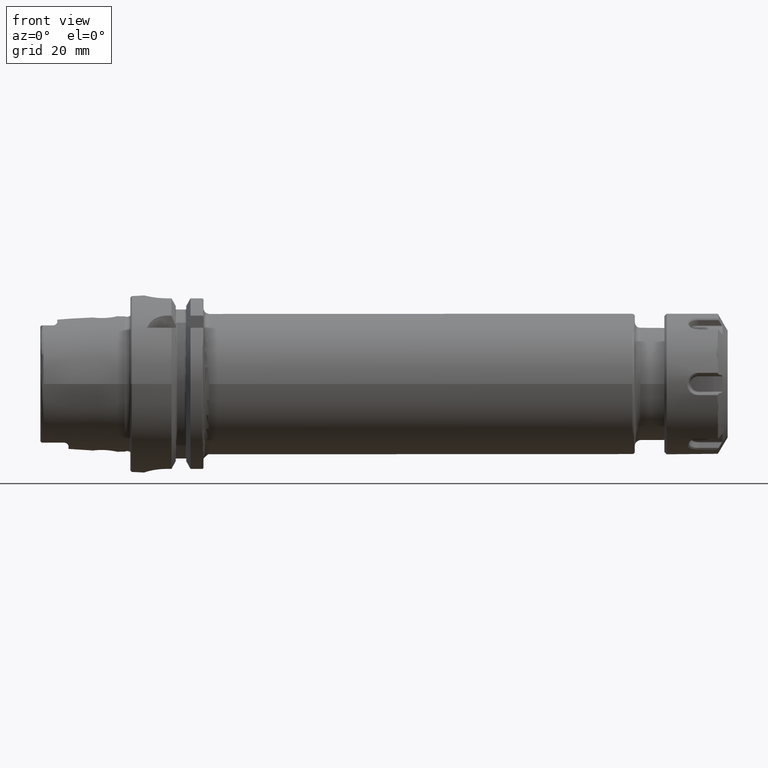
[diagram: clean part render]
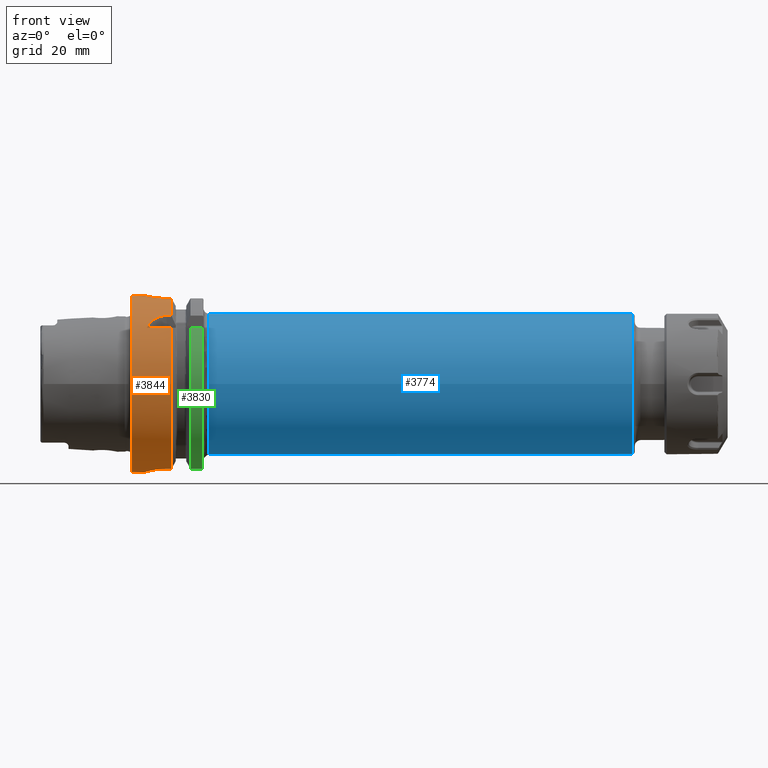
[diagram: same view with three faces highlighted in distinct colors, each labeled with its STEP entity id]
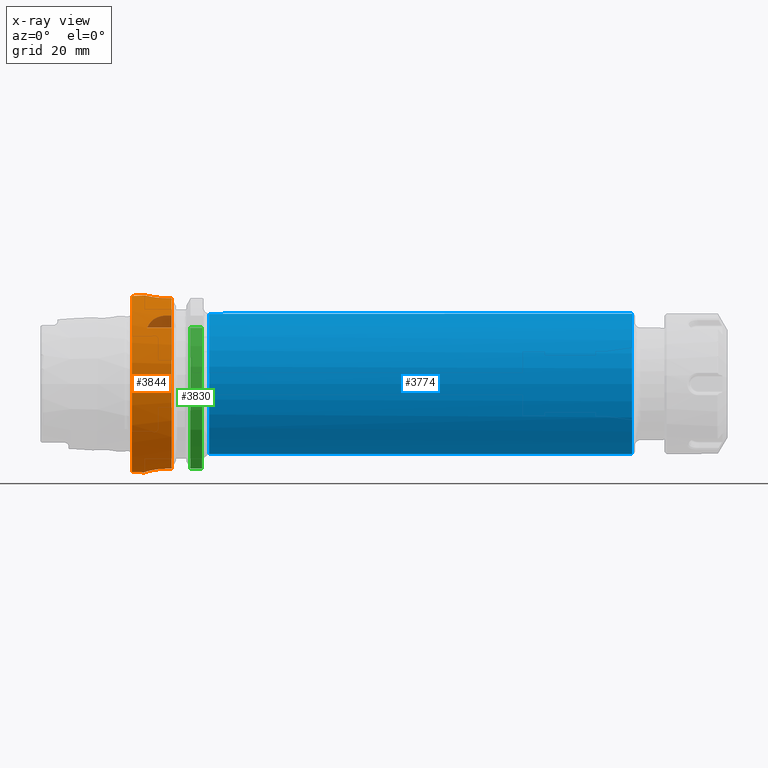
[diagram: x-ray of the same camera — body ghosted, the three highlighted faces saturated]
A machine part, front view with three faces highlighted in distinct colors.
The next image is the same camera in x-ray (body ghosted, the three faces saturated) — at least one of them is partly hidden behind the body in this view.
Their STEP definitions:

[orange] entity #3844 — the highlighted cylindrical surface (bore or boss wall) has radius 31.5 mm, axis along (1, 0, 0).
#497=B_SPLINE_CURVE_WITH_KNOTS('',3,(#6461,#6462,#6463,#6464,#6465,#6466,
#6467,#6468,#6469,#6470,#6471,#6472,#6473,#6474,#6475,#6476,#6477,#6478,
#6479,#6480,#6481,#6482,#6483,#6484,#6485,#6486),.UNSPECIFIED.,.F.,.F.,
(4,2,2,2,2,2,2,2,2,2,2,2,4),(0.,0.188688694287612,0.377377388575223,0.56606194688798,
0.754746505200737,0.943431063513494,1.13211562182625,1.32080431611386,1.50949301040147,
1.69818170468909,1.8868703989767,2.07555495728945,2.26423951560221),
 .UNSPECIFIED.);
#498=B_SPLINE_CURVE_WITH_KNOTS('',3,(#6487,#6488,#6489,#6490,#6491,#6492,
#6493,#6494,#6495,#6496),.UNSPECIFIED.,.F.,.F.,(4,2,2,2,4),(2.26423951560221,
2.45292407391497,2.64160863222773,2.83029732651534,3.01898602080295),
 .UNSPECIFIED.);
#501=B_SPLINE_CURVE_WITH_KNOTS('',3,(#6553,#6554,#6555,#6556,#6557,#6558,
#6559,#6560,#6561,#6562,#6563,#6564),.UNSPECIFIED.,.F.,.F.,(4,2,2,2,2,4),
(1.1085154204615,1.31979218709236,1.52798350480179,1.73617482251122,1.90421770126337,
2.07226058001552),.UNSPECIFIED.);
#511=B_SPLINE_CURVE_WITH_KNOTS('',3,(#6737,#6738,#6739,#6740,#6741,#6742,
#6743,#6744,#6745,#6746),.UNSPECIFIED.,.F.,.F.,(4,2,2,2,4),(1.20927420824097,
1.5131742975437,1.81707438684643,2.12000449915965,2.42293461147287),
 .UNSPECIFIED.);
#514=B_SPLINE_CURVE_WITH_KNOTS('',3,(#6772,#6773,#6774,#6775,#6776,#6777,
#6778,#6779,#6780,#6781),.UNSPECIFIED.,.F.,.F.,(4,2,2,2,4),(0.,0.30293011231322,
0.605860224626439,0.90976031392917,1.2136604032319),.UNSPECIFIED.);
#524=B_SPLINE_CURVE_WITH_KNOTS('',3,(#6933,#6934,#6935,#6936,#6937,#6938,
#6939,#6940,#6941,#6942,#6943,#6944,#6945,#6946,#6947,#6948,#6949,#6950),
 .UNSPECIFIED.,.F.,.F.,(4,2,2,2,2,2,2,2,4),(0.,0.302805879979318,0.605611759958635,
0.908372461246501,1.21113316253437,1.51389386382223,1.8166545651101,2.11946044508942,
2.42226632506874),.UNSPECIFIED.);
#659=FACE_BOUND('',#1043,.T.);
#830=FACE_OUTER_BOUND('',#1042,.T.);
#1042=EDGE_LOOP('',(#3090,#3091,#3092,#3093,#3094,#3095,#3096,#3097,#3098,
#3099,#3100,#3101,#3102,#3103,#3104,#3105,#3106,#3107));
#1043=EDGE_LOOP('',(#3108,#3109));
#1226=LINE('',#6528,#1419);
#1231=LINE('',#6573,#1424);
#1251=LINE('',#6754,#1444);
#1252=LINE('',#6758,#1445);
#1266=LINE('',#6927,#1459);
#1269=LINE('',#6957,#1462);
#1271=LINE('',#6963,#1464);
#1419=VECTOR('',#4800,10.);
#1424=VECTOR('',#4811,10.);
#1444=VECTOR('',#4877,10.);
#1445=VECTOR('',#4880,10.);
#1459=VECTOR('',#4964,10.);
#1462=VECTOR('',#4975,10.);
#1464=VECTOR('',#4983,31.5);
#1623=CIRCLE('',#4206,31.5);
#1624=CIRCLE('',#4207,31.5);
#1632=CIRCLE('',#4227,31.5);
#1633=CIRCLE('',#4229,31.5);
#1648=CIRCLE('',#4266,31.5);
#1649=CIRCLE('',#4267,31.5);
#1879=VERTEX_POINT('',#6458);
#1880=VERTEX_POINT('',#6460);
#1888=VERTEX_POINT('',#6525);
#1889=VERTEX_POINT('',#6527);
#1893=VERTEX_POINT('',#6552);
#1895=VERTEX_POINT('',#6569);
#1900=VERTEX_POINT('',#6585);
#1901=VERTEX_POINT('',#6587);
#1928=VERTEX_POINT('',#6735);
#1929=VERTEX_POINT('',#6736);
#1930=VERTEX_POINT('',#6756);
#1931=VERTEX_POINT('',#6757);
#1934=VERTEX_POINT('',#6771);
#1935=VERTEX_POINT('',#6786);
#1953=VERTEX_POINT('',#6924);
#1954=VERTEX_POINT('',#6926);
#1955=VERTEX_POINT('',#6932);
#1957=VERTEX_POINT('',#6962);
#2254=EDGE_CURVE('',#1880,#1879,#497,.T.);
#2255=EDGE_CURVE('',#1879,#1880,#498,.T.);
#2264=EDGE_CURVE('',#1889,#1888,#1226,.T.);
#2270=EDGE_CURVE('',#1888,#1893,#501,.T.);
#2274=EDGE_CURVE('',#1893,#1895,#1231,.T.);
#2280=EDGE_CURVE('',#1889,#1900,#1623,.T.);
#2281=EDGE_CURVE('',#1900,#1901,#1624,.T.);
#2317=EDGE_CURVE('',#1928,#1929,#511,.T.);
#2321=EDGE_CURVE('',#1929,#1901,#1251,.T.);
#2322=EDGE_CURVE('',#1930,#1931,#1252,.T.);
#2327=EDGE_CURVE('',#1931,#1934,#514,.T.);
#2329=EDGE_CURVE('',#1934,#1928,#1632,.T.);
#2330=EDGE_CURVE('',#1930,#1935,#1633,.T.);
#2365=EDGE_CURVE('',#1954,#1953,#1266,.T.);
#2367=EDGE_CURVE('',#1953,#1955,#524,.T.);
#2371=EDGE_CURVE('',#1955,#1935,#1269,.T.);
#2373=EDGE_CURVE('',#1954,#1895,#1648,.T.);
#2374=EDGE_CURVE('',#1900,#1957,#1271,.T.);
#2375=EDGE_CURVE('',#1957,#1957,#1649,.T.);
#3090=ORIENTED_EDGE('',*,*,#2274,.T.);
#3091=ORIENTED_EDGE('',*,*,#2373,.F.);
#3092=ORIENTED_EDGE('',*,*,#2365,.T.);
#3093=ORIENTED_EDGE('',*,*,#2367,.T.);
#3094=ORIENTED_EDGE('',*,*,#2371,.T.);
#3095=ORIENTED_EDGE('',*,*,#2330,.F.);
#3096=ORIENTED_EDGE('',*,*,#2322,.T.);
#3097=ORIENTED_EDGE('',*,*,#2327,.T.);
#3098=ORIENTED_EDGE('',*,*,#2329,.T.);
#3099=ORIENTED_EDGE('',*,*,#2317,.T.);
#3100=ORIENTED_EDGE('',*,*,#2321,.T.);
#3101=ORIENTED_EDGE('',*,*,#2281,.F.);
#3102=ORIENTED_EDGE('',*,*,#2374,.T.);
#3103=ORIENTED_EDGE('',*,*,#2375,.T.);
#3104=ORIENTED_EDGE('',*,*,#2374,.F.);
#3105=ORIENTED_EDGE('',*,*,#2280,.F.);
#3106=ORIENTED_EDGE('',*,*,#2264,.T.);
#3107=ORIENTED_EDGE('',*,*,#2270,.T.);
#3108=ORIENTED_EDGE('',*,*,#2254,.T.);
#3109=ORIENTED_EDGE('',*,*,#2255,.T.);
#3733=CYLINDRICAL_SURFACE('',#4265,31.5);
#3844=ADVANCED_FACE('',(#830,#659),#3733,.T.);
#4206=AXIS2_PLACEMENT_3D('',#6586,#4824,#4825);
#4207=AXIS2_PLACEMENT_3D('',#6588,#4826,#4827);
#4227=AXIS2_PLACEMENT_3D('',#6784,#4888,#4889);
#4229=AXIS2_PLACEMENT_3D('',#6787,#4892,#4893);
#4265=AXIS2_PLACEMENT_3D('',#6960,#4979,#4980);
#4266=AXIS2_PLACEMENT_3D('',#6961,#4981,#4982);
#4267=AXIS2_PLACEMENT_3D('',#6964,#4984,#4985);
#4800=DIRECTION('',(-1.,0.,0.));
#4811=DIRECTION('',(1.,0.,0.));
#4824=DIRECTION('center_axis',(1.,0.,0.));
#4825=DIRECTION('ref_axis',(0.,0.,-1.));
#4826=DIRECTION('center_axis',(1.,0.,0.));
#4827=DIRECTION('ref_axis',(0.,0.,-1.));
#4877=DIRECTION('',(1.,0.,0.));
#4880=DIRECTION('',(-1.,0.,0.));
#4888=DIRECTION('center_axis',(-1.,0.,0.));
#4889=DIRECTION('ref_axis',(0.,1.,0.));
#4892=DIRECTION('center_axis',(1.,0.,0.));
#4893=DIRECTION('ref_axis',(0.,0.,-1.));
#4964=DIRECTION('',(-1.,0.,0.));
#4975=DIRECTION('',(1.,0.,0.));
#4979=DIRECTION('center_axis',(1.,0.,0.));
#4980=DIRECTION('ref_axis',(0.,1.,0.));
#4981=DIRECTION('center_axis',(1.,0.,0.));
#4982=DIRECTION('ref_axis',(0.,0.,-1.));
#4983=DIRECTION('',(-1.,0.,0.));
#4984=DIRECTION('center_axis',(1.,0.,0.));
#4985=DIRECTION('ref_axis',(0.,0.,-1.));
#6458=CARTESIAN_POINT('',(12.,31.5,-6.12323399573677E-16));
#6460=CARTESIAN_POINT('',(7.,31.100643080168,5.));
#6461=CARTESIAN_POINT('Ctrl Pts',(7.,31.100643080168,5.));
#6462=CARTESIAN_POINT('Ctrl Pts',(6.37103768570796,31.100643080168,5.));
#6463=CARTESIAN_POINT('Ctrl Pts',(5.70089281579202,31.1216953112949,4.87408354368814));
#6464=CARTESIAN_POINT('Ctrl Pts',(4.46931934300962,31.1973810209855,4.36348784122736));
#6465=CARTESIAN_POINT('Ctrl Pts',(3.90779781350673,31.2508828501623,3.97886562537221));
#6466=CARTESIAN_POINT('Ctrl Pts',(3.021144092268,31.3510329557602,3.09221190413348));
#6467=CARTESIAN_POINT('Ctrl Pts',(2.63651425348544,31.4042391414288,2.5306861925578));
#6468=CARTESIAN_POINT('Ctrl Pts',(2.12591301120586,31.4792463697936,1.29909839144709));
#6469=CARTESIAN_POINT('Ctrl Pts',(2.,31.5,0.62894852770919));
#6470=CARTESIAN_POINT('Ctrl Pts',(2.,31.5,-0.62894852770919));
#6471=CARTESIAN_POINT('Ctrl Pts',(2.12591301120586,31.4792463697936,-1.29909839144709));
#6472=CARTESIAN_POINT('Ctrl Pts',(2.63651425348544,31.4042391414288,-2.5306861925578));
#6473=CARTESIAN_POINT('Ctrl Pts',(3.021144092268,31.3510329557602,-3.09221190413348));
#6474=CARTESIAN_POINT('Ctrl Pts',(3.90779781350673,31.2508828501623,-3.97886562537221));
#6475=CARTESIAN_POINT('Ctrl Pts',(4.46931934300962,31.1973810209855,-4.36348784122736));
#6476=CARTESIAN_POINT('Ctrl Pts',(5.70089281579202,31.1216953112949,-4.87408354368814));
#6477=CARTESIAN_POINT('Ctrl Pts',(6.37103768570796,31.100643080168,-5.));
#6478=CARTESIAN_POINT('Ctrl Pts',(7.62896231429204,31.100643080168,-5.));
#6479=CARTESIAN_POINT('Ctrl Pts',(8.29910718420798,31.1216953112949,-4.87408354368814));
#6480=CARTESIAN_POINT('Ctrl Pts',(9.53068065699038,31.1973810209855,-4.36348784122736));
#6481=CARTESIAN_POINT('Ctrl Pts',(10.0922021864933,31.2508828501623,-3.97886562537221));
#6482=CARTESIAN_POINT('Ctrl Pts',(10.978855907732,31.3510329557602,-3.09221190413348));
#6483=CARTESIAN_POINT('Ctrl Pts',(11.3634857465146,31.4042391414288,-2.53068619255779));
#6484=CARTESIAN_POINT('Ctrl Pts',(11.8740869887941,31.4792463697936,-1.29909839144708));
#6485=CARTESIAN_POINT('Ctrl Pts',(12.,31.5,-0.62894852770919));
#6486=CARTESIAN_POINT('Ctrl Pts',(12.,31.5,-4.16333634234434E-16));
#6487=CARTESIAN_POINT('Ctrl Pts',(12.,31.5,-1.11022302462516E-15));
#6488=CARTESIAN_POINT('Ctrl Pts',(12.,31.5,0.628948527709188));
#6489=CARTESIAN_POINT('Ctrl Pts',(11.8740869887941,31.4792463697936,1.29909839144708));
#6490=CARTESIAN_POINT('Ctrl Pts',(11.3634857465146,31.4042391414288,2.53068619255779));
#6491=CARTESIAN_POINT('Ctrl Pts',(10.978855907732,31.3510329557602,3.09221190413348));
#6492=CARTESIAN_POINT('Ctrl Pts',(10.0922021864933,31.2508828501623,3.97886562537221));
#6493=CARTESIAN_POINT('Ctrl Pts',(9.53068065699038,31.1973810209855,4.36348784122736));
#6494=CARTESIAN_POINT('Ctrl Pts',(8.29910718420798,31.1216953112949,4.87408354368814));
#6495=CARTESIAN_POINT('Ctrl Pts',(7.62896231429204,31.100643080168,5.));
#6496=CARTESIAN_POINT('Ctrl Pts',(7.,31.100643080168,5.));
#6525=CARTESIAN_POINT('',(5.88828609634419,-24.3361870472759,20.));
#6527=CARTESIAN_POINT('',(14.6225009252407,-24.3361870472759,20.));
#6528=CARTESIAN_POINT('',(7.56125046262034,-24.3361870472759,20.));
#6552=CARTESIAN_POINT('',(13.,-20.,24.3361870472759));
#6553=CARTESIAN_POINT('Ctrl Pts',(5.88828609634419,-24.3361870472759,20.));
#6554=CARTESIAN_POINT('Ctrl Pts',(6.11069532820048,-23.9044753723342,20.5253108035937));
#6555=CARTESIAN_POINT('Ctrl Pts',(6.38325999044306,-23.4713523250807,21.0173865932788));
#6556=CARTESIAN_POINT('Ctrl Pts',(7.044898076458,-22.6317364276543,21.9186738868096));
#6557=CARTESIAN_POINT('Ctrl Pts',(7.46714468561685,-22.1861072682036,22.3682920878559));
#6558=CARTESIAN_POINT('Ctrl Pts',(8.46725531403812,-21.3767026700071,23.143042657319));
#6559=CARTESIAN_POINT('Ctrl Pts',(9.04646427720221,-21.0147449478223,23.4683362269255));
#6560=CARTESIAN_POINT('Ctrl Pts',(10.1145001432702,-20.5200081116516,23.9011603796022));
#6561=CARTESIAN_POINT('Ctrl Pts',(10.670823971716,-20.3234249831704,24.0673462447194));
#6562=CARTESIAN_POINT('Ctrl Pts',(11.8334528721306,-20.063121855676,24.2847667849476));
#6563=CARTESIAN_POINT('Ctrl Pts',(12.4398570708262,-20.,24.3361870472759));
#6564=CARTESIAN_POINT('Ctrl Pts',(13.,-20.,24.3361870472759));
#6569=CARTESIAN_POINT('',(14.6225009252407,-20.,24.3361870472759));
#6573=CARTESIAN_POINT('',(7.56125046262035,-20.,24.3361870472759));
#6585=CARTESIAN_POINT('',(14.6225009252407,-31.5,-3.85763741731416E-15));
#6586=CARTESIAN_POINT('Origin',(14.6225009252407,0.,0.));
#6587=CARTESIAN_POINT('',(14.6225009252407,-9.,-30.1869176962472));
#6588=CARTESIAN_POINT('Origin',(14.6225009252407,0.,0.));
#6735=CARTESIAN_POINT('',(5.,-0.999999999999999,-31.4841229828623));
#6736=CARTESIAN_POINT('',(13.,-9.,-30.1869176962472));
#6737=CARTESIAN_POINT('Ctrl Pts',(5.,-0.999999999999997,-31.4841229828623));
#6738=CARTESIAN_POINT('Ctrl Pts',(5.,-2.01248971281587,-31.4519642432536));
#6739=CARTESIAN_POINT('Ctrl Pts',(5.2037733306458,-3.08756640398171,-31.3640631381934));
#6740=CARTESIAN_POINT('Ctrl Pts',(6.02370102555041,-5.05836608044729,-31.1070804719497));
#6741=CARTESIAN_POINT('Ctrl Pts',(6.63955745341061,-5.95454409907418,-30.9405445582004));
#6742=CARTESIAN_POINT('Ctrl Pts',(8.05472493283182,-7.36715009628369,-30.6348764237341));
#6743=CARTESIAN_POINT('Ctrl Pts',(8.9496642215883,-7.98063403850821,-30.4752177477269));
#6744=CARTESIAN_POINT('Ctrl Pts',(10.9171740660538,-8.79719825889174,-30.2496070227108));
#6745=CARTESIAN_POINT('Ctrl Pts',(11.9902329589559,-9.,-30.1869176962472));
#6746=CARTESIAN_POINT('Ctrl Pts',(13.,-9.,-30.1869176962472));
#6754=CARTESIAN_POINT('',(7.56125046262035,-8.99999999999999,-30.1869176962472));
#6756=CARTESIAN_POINT('',(14.6225009252407,9.,-30.1869176962472));
#6757=CARTESIAN_POINT('',(13.,9.00000000000001,-30.1869176962472));
#6758=CARTESIAN_POINT('',(7.56125046262034,9.00000000000001,-30.1869176962472));
#6771=CARTESIAN_POINT('',(5.,1.,-31.4841229828623));
#6772=CARTESIAN_POINT('Ctrl Pts',(13.,9.00000000000001,-30.1869176962472));
#6773=CARTESIAN_POINT('Ctrl Pts',(11.9902329589559,9.00000000000001,-30.1869176962472));
#6774=CARTESIAN_POINT('Ctrl Pts',(10.9171740660538,8.79719825889175,-30.2496070227108));
#6775=CARTESIAN_POINT('Ctrl Pts',(8.9496642215883,7.98063403850822,-30.4752177477269));
#6776=CARTESIAN_POINT('Ctrl Pts',(8.05472493283182,7.3671500962837,-30.6348764237341));
#6777=CARTESIAN_POINT('Ctrl Pts',(6.63955745341061,5.95454409907419,-30.9405445582004));
#6778=CARTESIAN_POINT('Ctrl Pts',(6.02370102555041,5.0583660804473,-31.1070804719497));
#6779=CARTESIAN_POINT('Ctrl Pts',(5.2037733306458,3.08756640398172,-31.3640631381934));
#6780=CARTESIAN_POINT('Ctrl Pts',(5.,2.01248971281588,-31.4519642432536));
#6781=CARTESIAN_POINT('Ctrl Pts',(5.,1.00000000000001,-31.4841229828623));
#6784=CARTESIAN_POINT('Origin',(5.,0.,0.));
#6786=CARTESIAN_POINT('',(14.6225009252407,8.,30.4671954731642));
#6787=CARTESIAN_POINT('Origin',(14.6225009252407,0.,0.));
#6924=CARTESIAN_POINT('',(13.,-8.,30.4671954731642));
#6926=CARTESIAN_POINT('',(14.6225009252407,-8.,30.4671954731642));
#6927=CARTESIAN_POINT('',(7.56125046262034,-8.,30.4671954731642));
#6932=CARTESIAN_POINT('',(13.,8.,30.4671954731642));
#6933=CARTESIAN_POINT('Ctrl Pts',(13.,-8.,30.4671954731643));
#6934=CARTESIAN_POINT('Ctrl Pts',(11.9906470667356,-8.,30.4671954731643));
#6935=CARTESIAN_POINT('Ctrl Pts',(10.9172075930168,-7.79737202490167,30.5225803085525));
#6936=CARTESIAN_POINT('Ctrl Pts',(8.94758399331801,-6.97961067526075,30.719895002943));
#6937=CARTESIAN_POINT('Ctrl Pts',(8.05099322370438,-6.36470172268915,30.8586830127239));
#6938=CARTESIAN_POINT('Ctrl Pts',(6.63540388828045,-4.94911238726521,31.1170994373341));
#6939=CARTESIAN_POINT('Ctrl Pts',(6.02041263015313,-4.05247770930662,31.2539072689014));
#6940=CARTESIAN_POINT('Ctrl Pts',(5.20259114887399,-2.08269813865027,31.4466478906396));
#6941=CARTESIAN_POINT('Ctrl Pts',(5.,-1.00920233762622,31.5));
#6942=CARTESIAN_POINT('Ctrl Pts',(5.,1.00920233762622,31.5));
#6943=CARTESIAN_POINT('Ctrl Pts',(5.20259114887399,2.08269813865027,31.4466478906396));
#6944=CARTESIAN_POINT('Ctrl Pts',(6.02041263015313,4.05247770930662,31.2539072689014));
#6945=CARTESIAN_POINT('Ctrl Pts',(6.63540388828045,4.94911238726521,31.1170994373341));
#6946=CARTESIAN_POINT('Ctrl Pts',(8.05099322370439,6.36470172268915,30.8586830127239));
#6947=CARTESIAN_POINT('Ctrl Pts',(8.94758399331801,6.97961067526075,30.719895002943));
#6948=CARTESIAN_POINT('Ctrl Pts',(10.9172075930168,7.79737202490167,30.5225803085525));
#6949=CARTESIAN_POINT('Ctrl Pts',(11.9906470667356,8.,30.4671954731643));
#6950=CARTESIAN_POINT('Ctrl Pts',(13.,8.,30.4671954731643));
#6957=CARTESIAN_POINT('',(7.56125046262035,8.,30.4671954731642));
#6960=CARTESIAN_POINT('Origin',(7.56125046262034,0.,0.));
#6961=CARTESIAN_POINT('Origin',(14.6225009252407,0.,0.));
#6962=CARTESIAN_POINT('',(0.5,-31.5,-3.85763741731416E-15));
#6963=CARTESIAN_POINT('',(7.56125046262034,-31.5,-3.85763741731416E-15));
#6964=CARTESIAN_POINT('Origin',(0.5,0.,0.));

[blue] entity #3774 — the highlighted cylindrical surface (bore or boss wall) has radius 25 mm, axis along (1, 0, 0).
#760=FACE_OUTER_BOUND('',#969,.T.);
#969=EDGE_LOOP('',(#2684,#2685,#2686,#2687,#2688,#2689));
#1183=LINE('',#5685,#1376);
#1376=VECTOR('',#4607,25.);
#1578=CIRCLE('',#4118,25.);
#1579=CIRCLE('',#4119,25.);
#1581=CIRCLE('',#4123,25.);
#1582=CIRCLE('',#4124,25.);
#1790=VERTEX_POINT('',#5675);
#1791=VERTEX_POINT('',#5677);
#1793=VERTEX_POINT('',#5684);
#1794=VERTEX_POINT('',#5686);
#2136=EDGE_CURVE('',#1790,#1791,#1578,.T.);
#2137=EDGE_CURVE('',#1791,#1790,#1579,.T.);
#2139=EDGE_CURVE('',#1791,#1793,#1183,.T.);
#2140=EDGE_CURVE('',#1794,#1793,#1581,.T.);
#2141=EDGE_CURVE('',#1793,#1794,#1582,.T.);
#2684=ORIENTED_EDGE('',*,*,#2137,.F.);
#2685=ORIENTED_EDGE('',*,*,#2139,.T.);
#2686=ORIENTED_EDGE('',*,*,#2140,.F.);
#2687=ORIENTED_EDGE('',*,*,#2141,.F.);
#2688=ORIENTED_EDGE('',*,*,#2139,.F.);
#2689=ORIENTED_EDGE('',*,*,#2136,.F.);
#3714=CYLINDRICAL_SURFACE('',#4122,25.);
#3774=ADVANCED_FACE('',(#760),#3714,.T.);
#4118=AXIS2_PLACEMENT_3D('',#5678,#4597,#4598);
#4119=AXIS2_PLACEMENT_3D('',#5679,#4599,#4600);
#4122=AXIS2_PLACEMENT_3D('',#5683,#4605,#4606);
#4123=AXIS2_PLACEMENT_3D('',#5687,#4608,#4609);
#4124=AXIS2_PLACEMENT_3D('',#5688,#4610,#4611);
#4597=DIRECTION('center_axis',(1.,0.,0.));
#4598=DIRECTION('ref_axis',(0.,-1.,1.83697019872103E-16));
#4599=DIRECTION('center_axis',(1.,0.,0.));
#4600=DIRECTION('ref_axis',(0.,-1.,1.83697019872103E-16));
#4605=DIRECTION('center_axis',(1.,0.,0.));
#4606=DIRECTION('ref_axis',(0.,1.,0.));
#4607=DIRECTION('',(-1.,0.,0.));
#4608=DIRECTION('center_axis',(-1.,0.,0.));
#4609=DIRECTION('ref_axis',(0.,-1.,-1.22464679914735E-16));
#4610=DIRECTION('center_axis',(-1.,0.,0.));
#4611=DIRECTION('ref_axis',(0.,-1.,-1.22464679914735E-16));
#5675=CARTESIAN_POINT('',(178.4,-3.06161699786838E-15,25.));
#5677=CARTESIAN_POINT('',(178.4,-25.,-3.06161699786838E-15));
#5678=CARTESIAN_POINT('Origin',(178.4,0.,0.));
#5679=CARTESIAN_POINT('Origin',(178.4,0.,0.));
#5683=CARTESIAN_POINT('Origin',(102.7,0.,0.));
#5684=CARTESIAN_POINT('',(28.,-25.,-3.06161699786838E-15));
#5685=CARTESIAN_POINT('',(102.7,-25.,-3.06161699786838E-15));
#5686=CARTESIAN_POINT('',(28.,-3.06161699786838E-15,-25.));
#5687=CARTESIAN_POINT('Origin',(28.,0.,0.));
#5688=CARTESIAN_POINT('Origin',(28.,0.,0.));

[green] entity #3830 — the highlighted cylindrical surface (partial cylindrical patch) has radius 31.5 mm, axis along (1, 0, 0).
#816=FACE_OUTER_BOUND('',#1028,.T.);
#1028=EDGE_LOOP('',(#3010,#3011,#3012,#3013));
#1222=LINE('',#6507,#1415);
#1238=LINE('',#6642,#1431);
#1415=VECTOR('',#4792,10.);
#1431=VECTOR('',#4852,10.);
#1640=CIRCLE('',#4242,31.5);
#1642=CIRCLE('',#4246,31.5);
#1883=VERTEX_POINT('',#6502);
#1884=VERTEX_POINT('',#6506);
#1909=VERTEX_POINT('',#6630);
#1910=VERTEX_POINT('',#6641);
#2258=EDGE_CURVE('',#1884,#1883,#1222,.T.);
#2296=EDGE_CURVE('',#1910,#1909,#1238,.T.);
#2346=EDGE_CURVE('',#1884,#1909,#1640,.T.);
#2349=EDGE_CURVE('',#1883,#1910,#1642,.T.);
#3010=ORIENTED_EDGE('',*,*,#2258,.T.);
#3011=ORIENTED_EDGE('',*,*,#2349,.T.);
#3012=ORIENTED_EDGE('',*,*,#2296,.T.);
#3013=ORIENTED_EDGE('',*,*,#2346,.F.);
#3729=CYLINDRICAL_SURFACE('',#4245,31.5);
#3830=ADVANCED_FACE('',(#816),#3729,.T.);
#4242=AXIS2_PLACEMENT_3D('',#6857,#4921,#4922);
#4245=AXIS2_PLACEMENT_3D('',#6862,#4928,#4929);
#4246=AXIS2_PLACEMENT_3D('',#6863,#4930,#4931);
#4792=DIRECTION('',(-1.,0.,0.));
#4852=DIRECTION('',(1.,0.,0.));
#4921=DIRECTION('center_axis',(1.,0.,0.));
#4922=DIRECTION('ref_axis',(0.,0.,-1.));
#4928=DIRECTION('center_axis',(1.,0.,0.));
#4929=DIRECTION('ref_axis',(0.,-0.956344671622108,-0.292241114595468));
#4930=DIRECTION('center_axis',(1.,0.,0.));
#4931=DIRECTION('ref_axis',(0.,0.,-1.));
#6502=CARTESIAN_POINT('',(21.3774990747593,-24.3361870472759,20.));
#6506=CARTESIAN_POINT('',(25.5,-24.3361870472759,20.));
#6507=CARTESIAN_POINT('',(23.4387495373797,-24.3361870472759,20.));
#6630=CARTESIAN_POINT('',(25.5,-9.,-30.1869176962472));
#6641=CARTESIAN_POINT('',(21.3774990747593,-9.,-30.1869176962472));
#6642=CARTESIAN_POINT('',(23.4387495373797,-9.,-30.1869176962472));
#6857=CARTESIAN_POINT('Origin',(25.5,0.,0.));
#6862=CARTESIAN_POINT('Origin',(23.4387495373797,0.,0.));
#6863=CARTESIAN_POINT('Origin',(21.3774990747593,0.,0.));